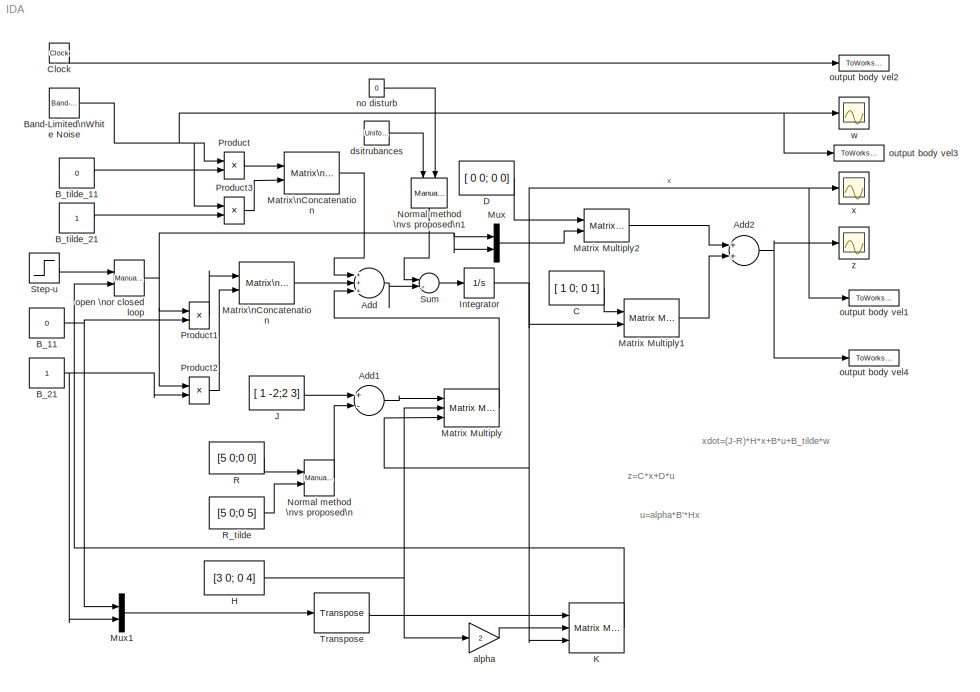
MODEL IDA
KIND model
BLOCK [Sum] Add
  InputSameDT = off
  Inputs = +++
  OutDataTypeMode = Inherit via internal rule
  OutScaling = 2^-10
  Ports = [3, 1]
  SaturateOnIntegerOverflow = off
BLOCK [Sum] Add1
  InputSameDT = off
  Inputs = +-
  OutDataTypeMode = Inherit via internal rule
  OutScaling = 2^-10
  Ports = [2, 1]
  SaturateOnIntegerOverflow = off
BLOCK [Sum] Add2
  InputSameDT = off
  OutDataTypeMode = Inherit via internal rule
  OutScaling = 2^-10
  Ports = [2, 1]
  SaturateOnIntegerOverflow = off
BLOCK [Constant] B_11
  Value = 0
BLOCK [Constant] B_21
BLOCK [Constant] B_tilde_11
  Value = 0
BLOCK [Constant] B_tilde_21
BLOCK [Reference] Band-Limited\nWhite Noise    REF=simulink/Sources/Band-Limited\nWhite Noise
  Cov = [1]
  Ports = [0, 1]
  ShowPortLabels = on
  SourceBlock = simulink/Sources/Band-Limited\nWhite Noise
  SourceType = Band-Limited White Noise.
  Ts = 0.1
  VectorParams1D = on
  seed = [23341]
BLOCK [Constant] C
  Value = [ 1 0; 0 1]
BLOCK [Clock] Clock
  Decimation = 10
BLOCK [Constant] D 
  Value = [ 0 0; 0 0]
BLOCK [Constant] H
  Value = [3 0; 0 4]
BLOCK [Integrator] Integrator
  InitialCondition = 5
  Ports = [1, 1]
BLOCK [Constant] J
  Value = [ 1 -2;2 3]
BLOCK [Reference] K  REF=dspmtrx3/Matrix Multiply
  OptimizationLevel = None
  Ports = [3, 1]
  SourceBlock = dspmtrx3/Matrix Multiply
  SourceType = Matrix Multiply
  numInputPorts = 3
BLOCK [Reference] Matrix Multiply  REF=dspmtrx3/Matrix Multiply
  OptimizationLevel = None
  Ports = [3, 1]
  SourceBlock = dspmtrx3/Matrix Multiply
  SourceType = Matrix Multiply
  numInputPorts = 3
BLOCK [Reference] Matrix Multiply1  REF=dspmtrx3/Matrix Multiply
  OptimizationLevel = None
  Ports = [2, 1]
  SourceBlock = dspmtrx3/Matrix Multiply
  SourceType = Matrix Multiply
  numInputPorts = 2
BLOCK [Reference] Matrix Multiply2  REF=dspmtrx3/Matrix Multiply
  OptimizationLevel = None
  Ports = [2, 1]
  SourceBlock = dspmtrx3/Matrix Multiply
  SourceType = Matrix Multiply
  numInputPorts = 2
BLOCK [Reference] Matrix\nConcatenation  REF=simulink/Math\nOperations/Matrix\nConcatenation
  Ports = [2, 1]
  SourceBlock = simulink/Math\nOperations/Matrix\nConcatenation
  SourceType = Matrix Concatenation
  catMethod = Vertical
  numInports = 2
BLOCK [Reference] Matrix\nConcatenation    REF=simulink/Math\nOperations/Matrix\nConcatenation
  Ports = [2, 1]
  SourceBlock = simulink/Math\nOperations/Matrix\nConcatenation
  SourceType = Matrix Concatenation
  catMethod = Vertical
  numInports = 2
BLOCK [Mux] Mux
  DisplayOption = bar
  Inputs = 2
  Ports = [2, 1]
BLOCK [Mux] Mux1
  DisplayOption = bar
  Inputs = 2
  Ports = [2, 1]
BLOCK [Reference] Normal method \nvs proposed\n  REF=simulink/Signal\nRouting/Manual Switch
  Ports = [2, 1]
  ShowPortLabels = on
  SourceBlock = simulink/Signal\nRouting/Manual Switch
  SourceType = Manual Switch
  action = 0
  sw = 1
BLOCK [Reference] Normal method \nvs proposed\n1  REF=simulink/Signal\nRouting/Manual Switch
  Ports = [2, 1]
  ShowPortLabels = on
  SourceBlock = simulink/Signal\nRouting/Manual Switch
  SourceType = Manual Switch
  action = 0
  sw = 1
BLOCK [Product] Product
  InputSameDT = off
  OutDataTypeMode = Inherit via internal rule
  Ports = [2, 1]
  SaturateOnIntegerOverflow = off
BLOCK [Product] Product1
  InputSameDT = off
  OutDataTypeMode = Inherit via internal rule
  Ports = [2, 1]
  SaturateOnIntegerOverflow = off
BLOCK [Product] Product2
  InputSameDT = off
  OutDataTypeMode = Inherit via internal rule
  Ports = [2, 1]
  SaturateOnIntegerOverflow = off
BLOCK [Product] Product3
  InputSameDT = off
  OutDataTypeMode = Inherit via internal rule
  Ports = [2, 1]
  SaturateOnIntegerOverflow = off
BLOCK [Constant] R
  Value = [5 0;0 0]
BLOCK [Constant] R_tilde
  Value = [5 0;0 5]
BLOCK [Step] Step-u
  After = 10
  SampleTime = 0
  Time = 0
BLOCK [Sum] Sum
  IconShape = round
  InputSameDT = off
  Inputs = |++
  OutDataTypeMode = Inherit via internal rule
  Ports = [2, 1]
  SaturateOnIntegerOverflow = off
BLOCK [Reference] Transpose  REF=dspmtrx3/Transpose
  Hermitian = off
  Ports = [1, 1]
  SourceBlock = dspmtrx3/Transpose
  SourceType = Transpose
  overflowFlag = on
BLOCK [Gain] alpha
  Gain = 2
  OutDataTypeMode = Inherit via internal rule
  ParameterDataTypeMode = Inherit via internal rule
  SaturateOnIntegerOverflow = off
BLOCK [UniformRandomNumber] dsitrubances
  Maximum = 10
  Minimum = -10
  SampleTime = 0
BLOCK [Constant] no disturb
  Value = 0
BLOCK [Reference] open \nor closed loop  REF=simulink/Signal\nRouting/Manual Switch
  Ports = [2, 1]
  ShowPortLabels = on
  SourceBlock = simulink/Signal\nRouting/Manual Switch
  SourceType = Manual Switch
  action = 0
  sw = 0
BLOCK [ToWorkspace] output body vel1
  MaxDataPoints = inf
  SampleTime = 1
  SaveFormat = Array
  VariableName = x
BLOCK [ToWorkspace] output body vel2
  MaxDataPoints = inf
  SampleTime = 1
  SaveFormat = Array
  VariableName = t
BLOCK [ToWorkspace] output body vel3
  MaxDataPoints = inf
  SampleTime = 1
  SaveFormat = Array
  VariableName = w
BLOCK [ToWorkspace] output body vel4
  MaxDataPoints = inf
  SampleTime = 1
  SaveFormat = Array
  VariableName = z
BLOCK [Scope] w
  DataFormat = StructureWithTime
  NumInputPorts = 1
  Ports = [1]
BLOCK [Scope] x
  DataFormat = StructureWithTime
  NumInputPorts = 1
  Ports = [1]
  SaveName = ScopeData1
BLOCK [Scope] z
  DataFormat = StructureWithTime
  NumInputPorts = 1
  Ports = [1]
  SaveName = ScopeData2
ANNOTATION (root): u=alpha*B'*Hx
ANNOTATION (root): xdot=(J-R)*H*x+B*u+B_tilde*w
ANNOTATION (root): z=C*x+D*u
LINE Add1:1 -> Matrix Multiply:1
NET Add2:1 -> output body vel4:1, z:1
LINE Add:1 -> Sum:2
NET B_11:1 -> Mux1:1, Product1:2
NET B_21:1 -> Mux1:2, Product2:2
LINE B_tilde_11:1 -> Product:2
LINE B_tilde_21:1 -> Product3:2
NET Band-Limited\nWhite Noise  :1 -> Product3:1, Product:1, output body vel3:1, w:1
LINE C:1 -> Matrix Multiply1:1
LINE Clock:1 -> output body vel2:1
LINE D :1 -> Matrix Multiply2:1
NET H:1 -> Matrix Multiply:2, alpha:1
NET Integrator:1 -> K:3, Matrix Multiply1:2, Matrix Multiply:3, output body vel1:1, x:1
LINE J:1 -> Add1:1
LINE K:1 -> open \nor closed loop:2
LINE Matrix Multiply1:1 -> Add2:2
LINE Matrix Multiply2:1 -> Add2:1
LINE Matrix Multiply:1 -> Add:3
LINE Matrix\nConcatenation  :1 -> Add:2
LINE Matrix\nConcatenation:1 -> Add:1
LINE Mux1:1 -> Transpose:1
LINE Mux:1 -> Matrix Multiply2:2
LINE Normal method \nvs proposed\n1:1 -> Sum:1
LINE Normal method \nvs proposed\n:1 -> Add1:2
LINE Product1:1 -> Matrix\nConcatenation  :1
LINE Product2:1 -> Matrix\nConcatenation  :2
LINE Product3:1 -> Matrix\nConcatenation:2
LINE Product:1 -> Matrix\nConcatenation:1
LINE R:1 -> Normal method \nvs proposed\n:1
LINE R_tilde:1 -> Normal method \nvs proposed\n:2
LINE Step-u:1 -> open \nor closed loop:1
LINE Sum:1 -> Integrator:1
LINE Transpose:1 -> K:1
LINE alpha:1 -> K:2
LINE dsitrubances:1 -> Normal method \nvs proposed\n1:1
LINE no disturb:1 -> Normal method \nvs proposed\n1:2
NET open \nor closed loop:1 -> Mux:1, Mux:2, Product1:1, Product2:1
note: NET lines group one-source signal fan-out (src -> all destinations, sorted); 1:1 wires keep LINE
